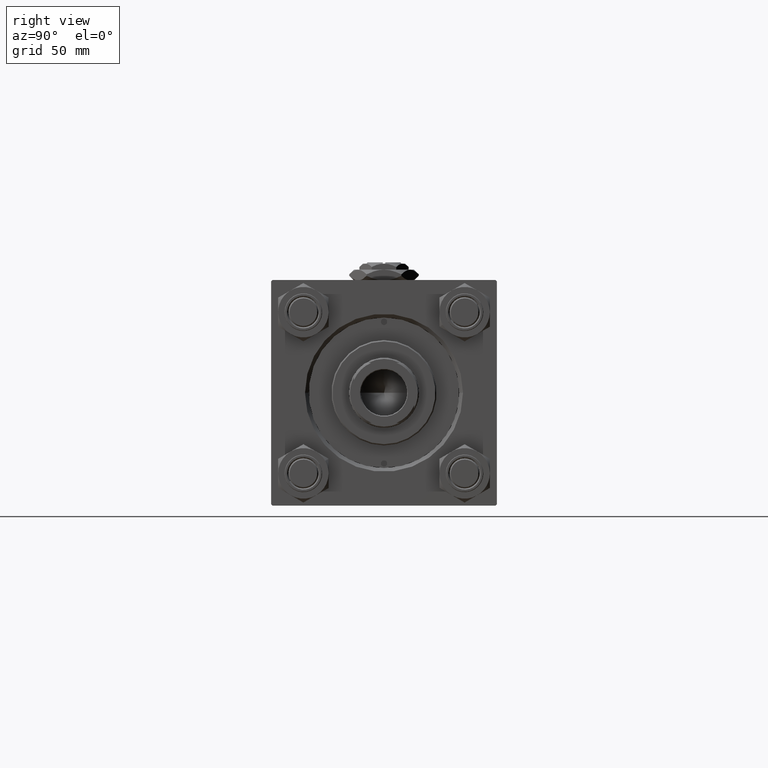
[diagram: clean part render]
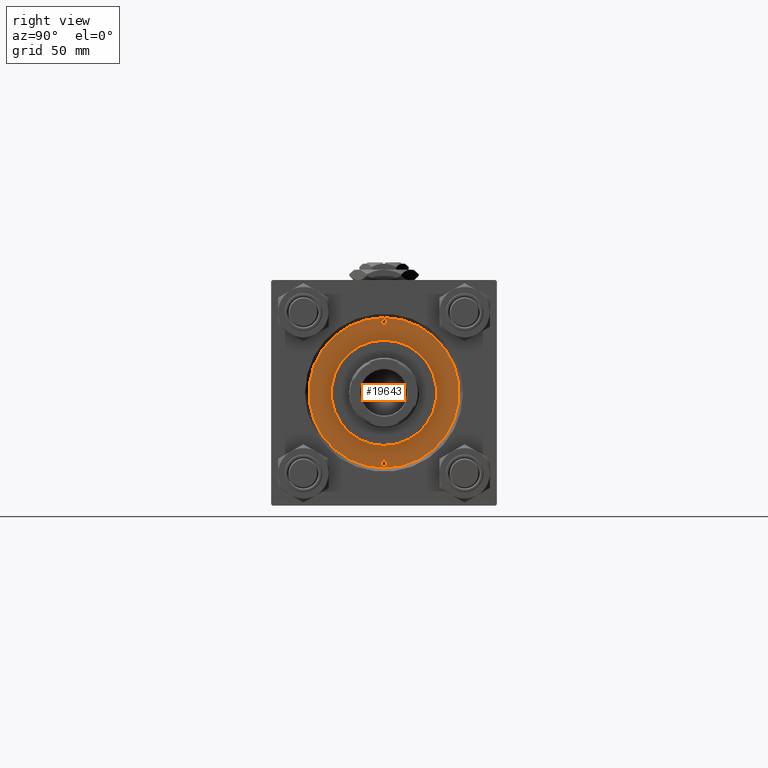
[diagram: same view with one face highlighted and labeled with its STEP entity id]
A machine part, right view. The second image highlights one B-rep face of the part: STEP entity #19643.
In plain terms, the highlighted planar face has unit normal (1, 0, 0).
Its self-contained STEP definition (entity closure, byte-faithful):
#145 = CARTESIAN_POINT ( 'NONE',  ( 29.50000000000000000, 0.000000000000000000, 26.69999999999999929 ) ) ;
#278 = DIRECTION ( 'NONE',  ( 1.000000000000000000, 0.000000000000000000, 0.000000000000000000 ) ) ;
#791 = EDGE_CURVE ( 'NONE', #10054, #5839, #25854, .T. ) ;
#3049 = CARTESIAN_POINT ( 'NONE',  ( 0.000000000000000000, 0.000000000000000000, 26.69999999999999929 ) ) ;
#3353 = EDGE_LOOP ( 'NONE', ( #39932, #19275 ) ) ;
#4083 = PLANE ( 'NONE',  #19652 ) ;
#5475 = CARTESIAN_POINT ( 'NONE',  ( 0.000000000000000000, 0.000000000000000000, 26.69999999999999929 ) ) ;
#5600 = DIRECTION ( 'NONE',  ( 1.000000000000000000, 0.000000000000000000, 0.000000000000000000 ) ) ;
#5747 = CIRCLE ( 'NONE', #19994, 30.00000000000000000 ) ;
#5839 = VERTEX_POINT ( 'NONE', #32783 ) ;
#5905 = AXIS2_PLACEMENT_3D ( 'NONE', #17174, #9282, #5600 ) ;
#5988 = DIRECTION ( 'NONE',  ( 1.000000000000000000, 0.000000000000000000, 0.000000000000000000 ) ) ;
#5993 = EDGE_CURVE ( 'NONE', #25426, #6297, #40307, .T. ) ;
#6003 = VERTEX_POINT ( 'NONE', #32659 ) ;
#6191 = AXIS2_PLACEMENT_3D ( 'NONE', #38920, #42587, #22654 ) ;
#6297 = VERTEX_POINT ( 'NONE', #25695 ) ;
#6434 = CARTESIAN_POINT ( 'NONE',  ( -27.00000000000000355, 0.000000000000000000, 26.69999999999999929 ) ) ;
#6623 = ORIENTED_EDGE ( 'NONE', *, *, #17993, .F. ) ;
#7223 = CIRCLE ( 'NONE', #38233, 1.249999999999997558 ) ;
#8010 = AXIS2_PLACEMENT_3D ( 'NONE', #51875, #28762, #31927 ) ;
#8751 = ORIENTED_EDGE ( 'NONE', *, *, #5993, .F. ) ;
#8961 = ORIENTED_EDGE ( 'NONE', *, *, #30365, .F. ) ;
#9175 = CARTESIAN_POINT ( 'NONE',  ( -28.25000000000000000, 0.000000000000000000, 26.69999999999999929 ) ) ;
#9282 = DIRECTION ( 'NONE',  ( 0.000000000000000000, 0.000000000000000000, 1.000000000000000000 ) ) ;
#10054 = VERTEX_POINT ( 'NONE', #145 ) ;
#13275 = CARTESIAN_POINT ( 'NONE',  ( 28.25000000000000000, 0.000000000000000000, 26.69999999999999929 ) ) ;
#14390 = DIRECTION ( 'NONE',  ( 0.000000000000000000, 0.000000000000000000, 1.000000000000000000 ) ) ;
#16531 = ORIENTED_EDGE ( 'NONE', *, *, #791, .F. ) ;
#17174 = CARTESIAN_POINT ( 'NONE',  ( 0.000000000000000000, 0.000000000000000000, 26.69999999999999929 ) ) ;
#17605 = VERTEX_POINT ( 'NONE', #6434 ) ;
#17993 = EDGE_CURVE ( 'NONE', #6297, #25426, #44752, .T. ) ;
#18076 = DIRECTION ( 'NONE',  ( 0.000000000000000000, 0.000000000000000000, 1.000000000000000000 ) ) ;
#18175 = DIRECTION ( 'NONE',  ( 1.000000000000000000, 0.000000000000000000, 0.000000000000000000 ) ) ;
#18426 = DIRECTION ( 'NONE',  ( 0.000000000000000000, 0.000000000000000000, 1.000000000000000000 ) ) ;
#18477 = ORIENTED_EDGE ( 'NONE', *, *, #20006, .F. ) ;
#19275 = ORIENTED_EDGE ( 'NONE', *, *, #38299, .T. ) ;
#19643 = ADVANCED_FACE ( 'NONE', ( #39001, #31132, #26933, #43461 ), #4083, .T. ) ;
#19652 = AXIS2_PLACEMENT_3D ( 'NONE', #3049, #20091, #47132 ) ;
#19994 = AXIS2_PLACEMENT_3D ( 'NONE', #50713, #18426, #18175 ) ;
#20006 = EDGE_CURVE ( 'NONE', #17605, #38445, #20553, .T. ) ;
#20091 = DIRECTION ( 'NONE',  ( 0.000000000000000000, 0.000000000000000000, 1.000000000000000000 ) ) ;
#20553 = CIRCLE ( 'NONE', #44003, 1.249999999999997558 ) ;
#20800 = CARTESIAN_POINT ( 'NONE',  ( 30.00000000000000000, 3.673940397442059178E-15, 26.69999999999999929 ) ) ;
#22141 = EDGE_LOOP ( 'NONE', ( #6623, #8751 ) ) ;
#22654 = DIRECTION ( 'NONE',  ( 1.000000000000000000, 0.000000000000000000, 0.000000000000000000 ) ) ;
#22782 = EDGE_LOOP ( 'NONE', ( #18477, #45225 ) ) ;
#25426 = VERTEX_POINT ( 'NONE', #31056 ) ;
#25695 = CARTESIAN_POINT ( 'NONE',  ( -21.00000000000000000, 0.000000000000000000, 26.69999999999999929 ) ) ;
#25854 = CIRCLE ( 'NONE', #28359, 1.249999999999997558 ) ;
#26933 = FACE_BOUND ( 'NONE', #22141, .T. ) ;
#27275 = CIRCLE ( 'NONE', #8010, 1.249999999999997558 ) ;
#28107 = EDGE_CURVE ( 'NONE', #6003, #40234, #43229, .T. ) ;
#28359 = AXIS2_PLACEMENT_3D ( 'NONE', #13275, #29289, #38437 ) ;
#28762 = DIRECTION ( 'NONE',  ( 0.000000000000000000, 0.000000000000000000, 1.000000000000000000 ) ) ;
#29289 = DIRECTION ( 'NONE',  ( 0.000000000000000000, 0.000000000000000000, 1.000000000000000000 ) ) ;
#30365 = EDGE_CURVE ( 'NONE', #5839, #10054, #27275, .T. ) ;
#31056 = CARTESIAN_POINT ( 'NONE',  ( 21.00000000000000000, 2.571758278209441661E-15, 26.69999999999999929 ) ) ;
#31132 = FACE_BOUND ( 'NONE', #31217, .T. ) ;
#31217 = EDGE_LOOP ( 'NONE', ( #16531, #8961 ) ) ;
#31927 = DIRECTION ( 'NONE',  ( 1.000000000000000000, 0.000000000000000000, 0.000000000000000000 ) ) ;
#32659 = CARTESIAN_POINT ( 'NONE',  ( -30.00000000000000000, 0.000000000000000000, 26.69999999999999929 ) ) ;
#32683 = EDGE_CURVE ( 'NONE', #38445, #17605, #7223, .T. ) ;
#32783 = CARTESIAN_POINT ( 'NONE',  ( 27.00000000000000355, 1.530808498934192803E-16, 26.69999999999999929 ) ) ;
#38015 = DIRECTION ( 'NONE',  ( 1.000000000000000000, 0.000000000000000000, 0.000000000000000000 ) ) ;
#38233 = AXIS2_PLACEMENT_3D ( 'NONE', #41951, #14390, #38015 ) ;
#38299 = EDGE_CURVE ( 'NONE', #40234, #6003, #5747, .T. ) ;
#38437 = DIRECTION ( 'NONE',  ( 1.000000000000000000, 0.000000000000000000, 0.000000000000000000 ) ) ;
#38445 = VERTEX_POINT ( 'NONE', #48576 ) ;
#38920 = CARTESIAN_POINT ( 'NONE',  ( 0.000000000000000000, 0.000000000000000000, 26.69999999999999929 ) ) ;
#39001 = FACE_BOUND ( 'NONE', #22782, .T. ) ;
#39932 = ORIENTED_EDGE ( 'NONE', *, *, #28107, .T. ) ;
#40234 = VERTEX_POINT ( 'NONE', #20800 ) ;
#40307 = CIRCLE ( 'NONE', #5905, 21.00000000000000000 ) ;
#40722 = AXIS2_PLACEMENT_3D ( 'NONE', #5475, #18076, #5988 ) ;
#41192 = DIRECTION ( 'NONE',  ( 0.000000000000000000, 0.000000000000000000, 1.000000000000000000 ) ) ;
#41951 = CARTESIAN_POINT ( 'NONE',  ( -28.25000000000000000, 0.000000000000000000, 26.69999999999999929 ) ) ;
#42587 = DIRECTION ( 'NONE',  ( 0.000000000000000000, 0.000000000000000000, 1.000000000000000000 ) ) ;
#43229 = CIRCLE ( 'NONE', #40722, 30.00000000000000000 ) ;
#43461 = FACE_OUTER_BOUND ( 'NONE', #3353, .T. ) ;
#44003 = AXIS2_PLACEMENT_3D ( 'NONE', #9175, #41192, #278 ) ;
#44752 = CIRCLE ( 'NONE', #6191, 21.00000000000000000 ) ;
#45225 = ORIENTED_EDGE ( 'NONE', *, *, #32683, .F. ) ;
#47132 = DIRECTION ( 'NONE',  ( 1.000000000000000000, 0.000000000000000000, -0.000000000000000000 ) ) ;
#48576 = CARTESIAN_POINT ( 'NONE',  ( -29.50000000000000000, 1.530808498934192803E-16, 26.69999999999999929 ) ) ;
#50713 = CARTESIAN_POINT ( 'NONE',  ( 0.000000000000000000, 0.000000000000000000, 26.69999999999999929 ) ) ;
#51875 = CARTESIAN_POINT ( 'NONE',  ( 28.25000000000000000, 0.000000000000000000, 26.69999999999999929 ) ) ;